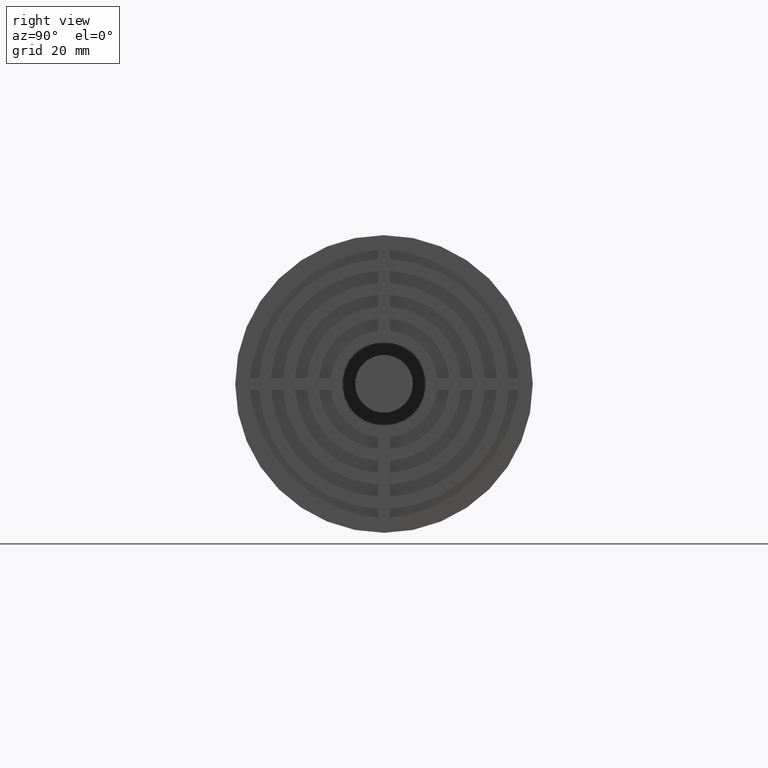
[diagram: clean part render]
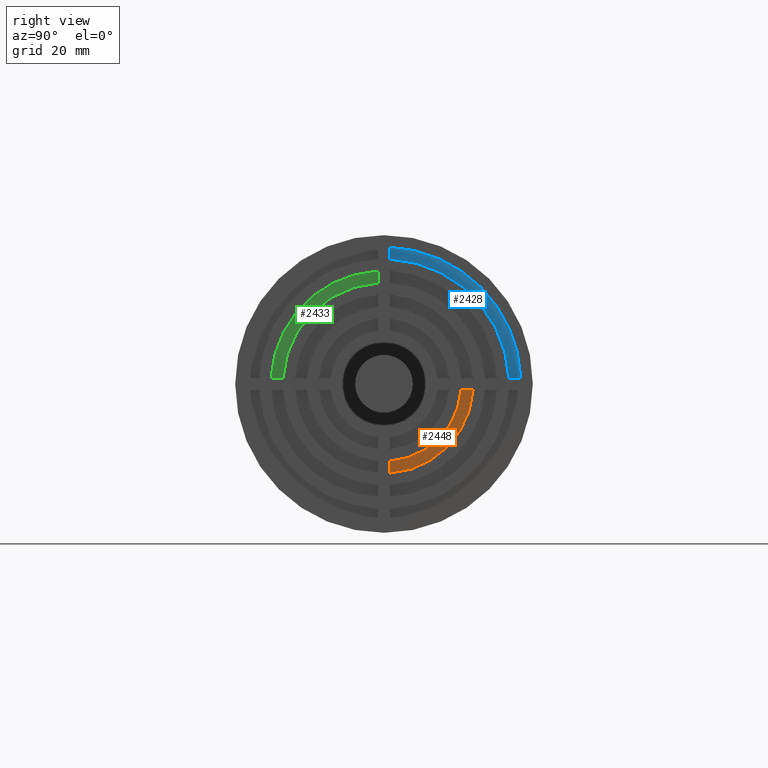
[diagram: same view with three faces highlighted in distinct colors, each labeled with its STEP entity id]
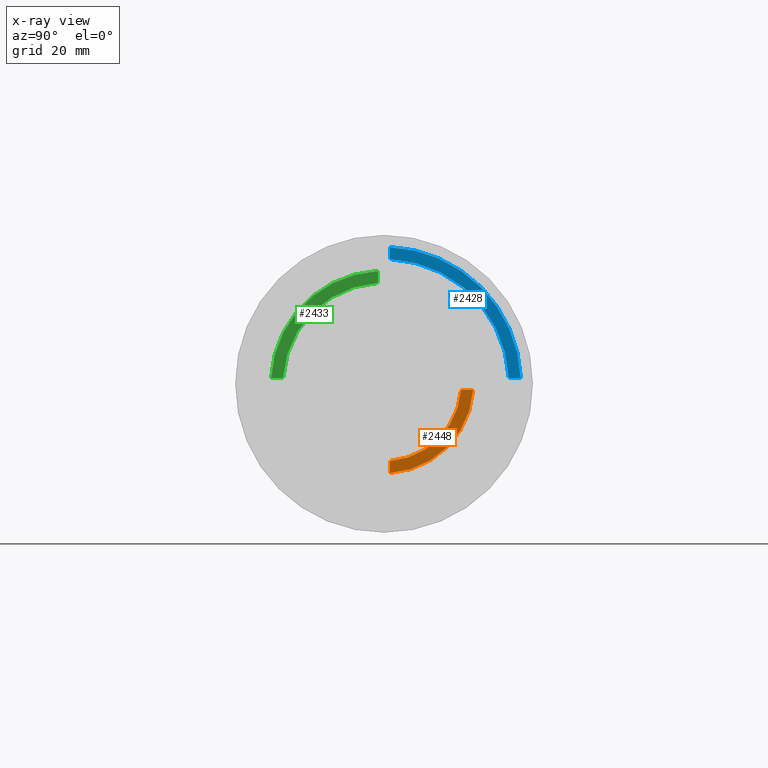
[diagram: x-ray of the same camera — body ghosted, the three highlighted faces saturated]
A machine part, right view with three faces highlighted in distinct colors.
The next image is the same camera in x-ray (body ghosted, the three faces saturated) — at least one of them is partly hidden behind the body in this view.
Their STEP definitions:

[orange] entity #2448 — the highlighted planar face has unit normal (1, 0, -0).
#59=LINE('',#3792,#283);
#62=LINE('',#3801,#286);
#283=VECTOR('',#3017,2.00514815028005);
#286=VECTOR('',#3028,2.00514815028005);
#544=PLANE('',#2635);
#690=FACE_OUTER_BOUND('',#849,.T.);
#849=EDGE_LOOP('',(#1841,#1842,#1843,#1844));
#1032=CIRCLE('',#2629,13.);
#1034=CIRCLE('',#2633,15.);
#1178=VERTEX_POINT('',#3782);
#1179=VERTEX_POINT('',#3784);
#1181=VERTEX_POINT('',#3790);
#1183=VERTEX_POINT('',#3796);
#1435=EDGE_CURVE('',#1178,#1179,#1032,.T.);
#1439=EDGE_CURVE('',#1181,#1178,#59,.T.);
#1442=EDGE_CURVE('',#1183,#1181,#1034,.T.);
#1444=EDGE_CURVE('',#1179,#1183,#62,.T.);
#1841=ORIENTED_EDGE('',*,*,#1444,.F.);
#1842=ORIENTED_EDGE('',*,*,#1435,.F.);
#1843=ORIENTED_EDGE('',*,*,#1439,.F.);
#1844=ORIENTED_EDGE('',*,*,#1442,.F.);
#2448=ADVANCED_FACE('',(#690),#544,.T.);
#2629=AXIS2_PLACEMENT_3D('',#3785,#3010,#3011);
#2633=AXIS2_PLACEMENT_3D('',#3798,#3023,#3024);
#2635=AXIS2_PLACEMENT_3D('',#3802,#3029,#3030);
#3010=DIRECTION('center_axis',(1.,1.83697019872103E-16,0.));
#3011=DIRECTION('ref_axis',(1.41305399901618E-17,-0.0769230769230771,0.997037030524286));
#3017=DIRECTION('',(-3.26974622006562E-32,1.77996693813658E-16,1.));
#3023=DIRECTION('center_axis',(-1.,-1.83697019872103E-16,1.54074395550979E-33));
#3024=DIRECTION('ref_axis',(-1.22464679914735E-17,0.0666666666666664,-0.997775303139718));
#3028=DIRECTION('',(-1.83697019872103E-16,1.,-5.93322312712193E-17));
#3029=DIRECTION('center_axis',(1.,1.83697019872103E-16,-1.94326838842993E-32));
#3030=DIRECTION('ref_axis',(0.,0.,-1.));
#3782=CARTESIAN_POINT('',(-31.,0.999999999999996,-12.9614813968157));
#3784=CARTESIAN_POINT('',(-31.,12.9614813968157,-1.));
#3785=CARTESIAN_POINT('Origin',(-31.,-5.51091059616309E-15,0.));
#3790=CARTESIAN_POINT('',(-31.,0.99999999999999,-14.9666295470958));
#3792=CARTESIAN_POINT('',(-31.,0.999999999999993,-8.94427190999916));
#3796=CARTESIAN_POINT('',(-31.,14.9666295470958,-0.999999999999997));
#3798=CARTESIAN_POINT('Origin',(-31.,-5.51091059616309E-15,0.));
#3801=CARTESIAN_POINT('',(-31.,22.9782505861521,-1.));
#3802=CARTESIAN_POINT('Origin',(-31.,8.93541492664989,-8.93541492664989));

[blue] entity #2428 — the highlighted planar face has unit normal (1, 0, 0).
#25=LINE('',#3685,#249);
#30=LINE('',#3698,#254);
#249=VECTOR('',#2905,2.00207362274909);
#254=VECTOR('',#2918,2.00207362274909);
#532=PLANE('',#2599);
#670=FACE_OUTER_BOUND('',#829,.T.);
#829=EDGE_LOOP('',(#1761,#1762,#1763,#1764));
#1016=CIRCLE('',#2594,21.);
#1018=CIRCLE('',#2598,23.);
#1146=VERTEX_POINT('',#3682);
#1147=VERTEX_POINT('',#3684);
#1149=VERTEX_POINT('',#3690);
#1151=VERTEX_POINT('',#3696);
#1387=EDGE_CURVE('',#1146,#1147,#25,.T.);
#1391=EDGE_CURVE('',#1149,#1146,#1016,.T.);
#1394=EDGE_CURVE('',#1151,#1149,#30,.T.);
#1396=EDGE_CURVE('',#1147,#1151,#1018,.T.);
#1761=ORIENTED_EDGE('',*,*,#1396,.F.);
#1762=ORIENTED_EDGE('',*,*,#1387,.F.);
#1763=ORIENTED_EDGE('',*,*,#1391,.F.);
#1764=ORIENTED_EDGE('',*,*,#1394,.F.);
#2428=ADVANCED_FACE('',(#670),#532,.T.);
#2594=AXIS2_PLACEMENT_3D('',#3692,#2912,#2913);
#2598=AXIS2_PLACEMENT_3D('',#3701,#2923,#2924);
#2599=AXIS2_PLACEMENT_3D('',#3702,#2925,#2926);
#2905=DIRECTION('',(-1.08991540668854E-32,5.93322312712193E-17,1.));
#2912=DIRECTION('center_axis',(1.,1.83697019872103E-16,0.));
#2913=DIRECTION('ref_axis',(1.83488628404143E-16,-0.998865569685859,-0.0476190476190474));
#2918=DIRECTION('',(1.83697019872103E-16,-1.,-5.93322312712193E-17));
#2923=DIRECTION('center_axis',(-1.,-1.83697019872103E-16,0.));
#2924=DIRECTION('ref_axis',(-1.83523311067415E-16,0.999054373310961,0.0434782608695652));
#2925=DIRECTION('center_axis',(1.,1.83697019872103E-16,0.));
#2926=DIRECTION('ref_axis',(0.,0.,-1.));
#3682=CARTESIAN_POINT('',(-31.,0.999999999999992,20.976176963403));
#3684=CARTESIAN_POINT('',(-31.,0.999999999999996,22.9782505861521));
#3685=CARTESIAN_POINT('',(-31.,0.999999999999996,22.9782505861521));
#3690=CARTESIAN_POINT('',(-31.,20.976176963403,0.999999999999994));
#3692=CARTESIAN_POINT('Origin',(-31.,-5.51091059616309E-15,0.));
#3696=CARTESIAN_POINT('',(-31.,22.9782505861521,1.));
#3698=CARTESIAN_POINT('',(-31.,8.94427190999915,0.999999999999999));
#3701=CARTESIAN_POINT('Origin',(-31.,-5.51091059616309E-15,0.));
#3702=CARTESIAN_POINT('Origin',(-31.,14.0000107496039,14.0000107496039));

[green] entity #2433 — the highlighted planar face has unit normal (1, 0, 0).
#33=LINE('',#3710,#257);
#38=LINE('',#3723,#262);
#257=VECTOR('',#2931,2.00310321253313);
#262=VECTOR('',#2944,2.00310321253313);
#535=PLANE('',#2608);
#675=FACE_OUTER_BOUND('',#834,.T.);
#834=EDGE_LOOP('',(#1781,#1782,#1783,#1784));
#1020=CIRCLE('',#2603,17.);
#1022=CIRCLE('',#2607,19.);
#1154=VERTEX_POINT('',#3707);
#1155=VERTEX_POINT('',#3709);
#1157=VERTEX_POINT('',#3715);
#1159=VERTEX_POINT('',#3721);
#1399=EDGE_CURVE('',#1154,#1155,#33,.T.);
#1403=EDGE_CURVE('',#1157,#1154,#1020,.T.);
#1406=EDGE_CURVE('',#1159,#1157,#38,.T.);
#1408=EDGE_CURVE('',#1155,#1159,#1022,.T.);
#1781=ORIENTED_EDGE('',*,*,#1408,.F.);
#1782=ORIENTED_EDGE('',*,*,#1399,.F.);
#1783=ORIENTED_EDGE('',*,*,#1403,.F.);
#1784=ORIENTED_EDGE('',*,*,#1406,.F.);
#2433=ADVANCED_FACE('',(#675),#535,.T.);
#2603=AXIS2_PLACEMENT_3D('',#3717,#2938,#2939);
#2607=AXIS2_PLACEMENT_3D('',#3726,#2949,#2950);
#2608=AXIS2_PLACEMENT_3D('',#3727,#2951,#2952);
#2931=DIRECTION('',(1.83697019872103E-16,-1.,1.18664462542439E-16));
#2938=DIRECTION('center_axis',(1.,1.83697019872103E-16,0.));
#2939=DIRECTION('ref_axis',(-1.08057070513002E-17,0.0588235294117646,-0.998268396969244));
#2944=DIRECTION('',(1.08991540668854E-32,-5.93322312712193E-17,-1.));
#2949=DIRECTION('center_axis',(-1.,-1.83697019872103E-16,0.));
#2950=DIRECTION('ref_axis',(9.66826420379484E-18,-0.0526315789473681,0.998613997947909));
#2951=DIRECTION('center_axis',(1.,1.83697019872103E-16,0.));
#2952=DIRECTION('ref_axis',(0.,0.,-1.));
#3707=CARTESIAN_POINT('',(-31.,-16.9705627484771,1.));
#3709=CARTESIAN_POINT('',(-31.,-18.9736659610103,1.));
#3710=CARTESIAN_POINT('',(-31.,-22.9782505861521,1.));
#3715=CARTESIAN_POINT('',(-31.,-1.,16.9705627484771));
#3717=CARTESIAN_POINT('Origin',(-31.,-5.64968847424123E-15,0.));
#3721=CARTESIAN_POINT('',(-31.,-1.,18.9736659610103));
#3723=CARTESIAN_POINT('',(-31.,-1.00000000000001,8.94427190999916));
#3726=CARTESIAN_POINT('Origin',(-31.,-5.64968847424123E-15,0.));
#3727=CARTESIAN_POINT('Origin',(-31.,-11.4646905489932,11.4646905489932));